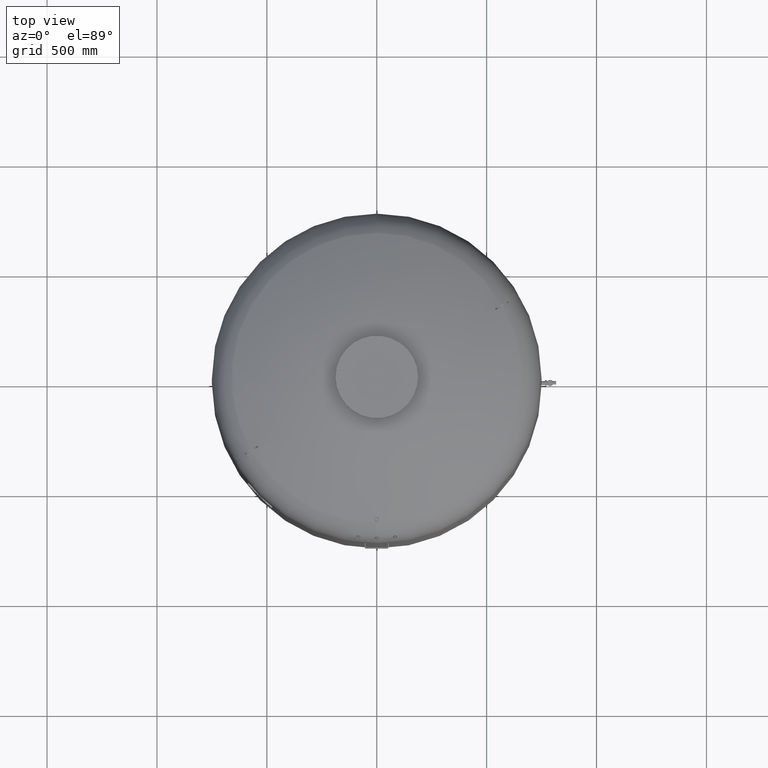
[diagram: clean part render]
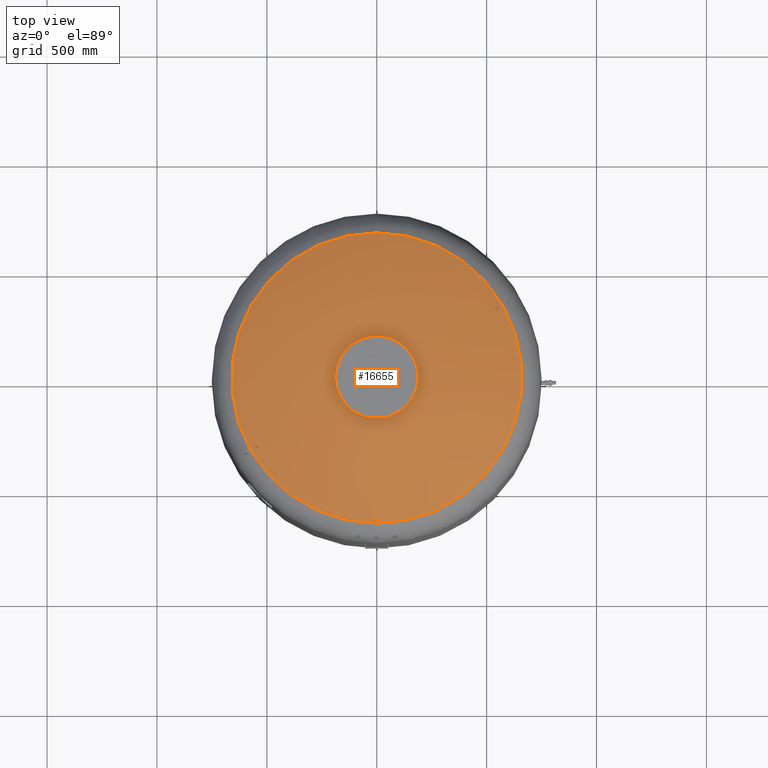
[diagram: same view with one face highlighted and labeled with its STEP entity id]
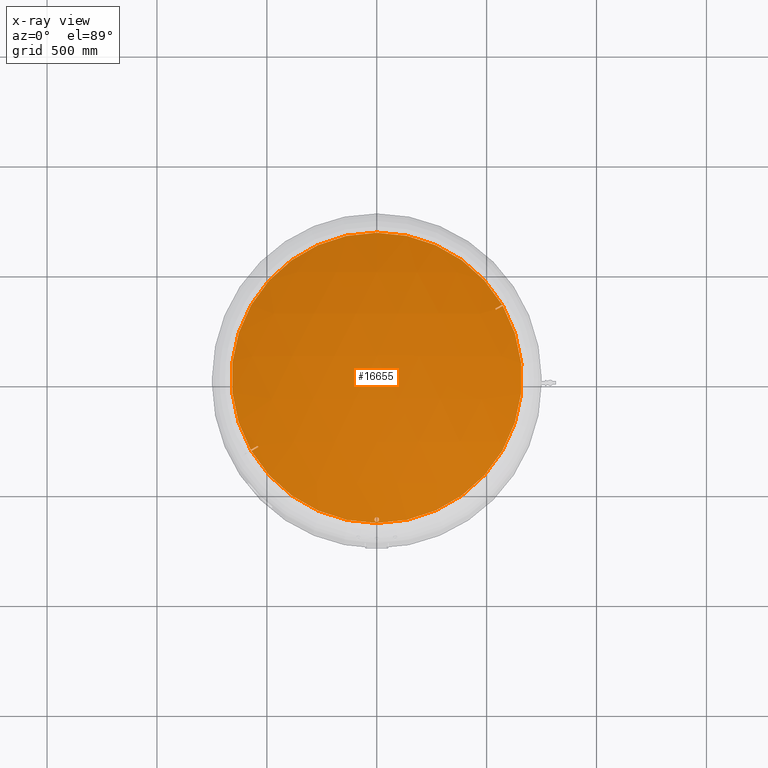
[diagram: x-ray of the same camera — body ghosted, the highlighted face saturated]
A machine part, top view. The second image highlights one B-rep face of the part: STEP entity #16655.
The next image is the same camera in x-ray: the body ghosted, the highlighted face saturated — about 0% of this face is hidden behind the body in this view.
In plain terms, the highlighted spherical surface has radius 1509 mm.
Its self-contained STEP definition (entity closure, byte-faithful):
#15873=CARTESIAN_POINT('',(-3.908790E-014,-655.650000000000200,2275.118860696149600));
#15874=VERTEX_POINT('',#15873);
#15890=CARTESIAN_POINT('',(-3.643333E-014,-634.350000000000250,2285.189934778955400));
#15891=VERTEX_POINT('',#15890);
#15898=CARTESIAN_POINT('',(-3.643333E-014,-634.350000000000250,2285.189934778955400));
#15899=CARTESIAN_POINT('',(-0.665356121600575,-634.350000000000250,2285.189934778955400));
#15900=CARTESIAN_POINT('',(-1.350949437001933,-634.413404190588380,2285.160067323583900));
#15901=CARTESIAN_POINT('',(-2.709163715388102,-634.677136677483300,2285.035819489551600));
#15902=CARTESIAN_POINT('',(-3.381800145527381,-634.877399673759780,2284.941469592940800));
#15903=CARTESIAN_POINT('',(-4.666205770247565,-635.401555709393960,2284.694482302683800));
#15904=CARTESIAN_POINT('',(-5.279175018932286,-635.725897994843310,2284.541632396409100));
#15905=CARTESIAN_POINT('',(-6.408446699131011,-636.467094997367890,2284.192258225785700));
#15906=CARTESIAN_POINT('',(-6.924750618118385,-636.883947430330180,2283.995733923613400));
#15907=CARTESIAN_POINT('',(-7.890225855511284,-637.812066143510150,2283.558066601965000));
#15908=CARTESIAN_POINT('',(-8.361484811050577,-638.364076526992330,2283.297699280517000));
#15909=CARTESIAN_POINT('',(-9.184909130526258,-639.560574217313960,2282.733154802825500));
#15910=CARTESIAN_POINT('',(-9.537165322407889,-640.205009979753980,2282.429000886638700));
#15911=CARTESIAN_POINT('',(-10.099596713855821,-641.543470358319950,2281.797056877939700));
#15912=CARTESIAN_POINT('',(-10.310158197774166,-642.238371078161440,2281.468852435417800));
#15913=CARTESIAN_POINT('',(-10.585389715432889,-643.630518005042970,2280.811092215924000));
#15914=CARTESIAN_POINT('',(-10.650000000000041,-644.327773783445990,2280.481531696811500));
#15915=CARTESIAN_POINT('',(-10.650000000000041,-645.672582847176270,2279.845682896962900));
#15916=CARTESIAN_POINT('',(-10.585321999158978,-646.370108996278650,2279.515766474685300));
#15917=CARTESIAN_POINT('',(-10.309904511360994,-647.762627273321750,2278.856887882093800));
#15918=CARTESIAN_POINT('',(-10.099226215268921,-648.457629366783070,2278.527921196685800));
#15919=CARTESIAN_POINT('',(-9.536575262430000,-649.796175836176870,2277.894126243168100));
#15920=CARTESIAN_POINT('',(-9.184218306884119,-650.440594312455000,2277.588884786357100));
#15921=CARTESIAN_POINT('',(-8.360621428439867,-651.637013011092450,2277.022009760502000));
#15922=CARTESIAN_POINT('',(-7.889290439644364,-652.188962456306400,2276.760401335867800));
#15923=CARTESIAN_POINT('',(-6.923874650766163,-653.116778685511690,2276.320541682071500));
#15924=CARTESIAN_POINT('',(-6.407722563082293,-653.533432843510810,2276.122965029964700));
#15925=CARTESIAN_POINT('',(-5.278739801402308,-654.274335051526010,2275.771567636845200));
#15926=CARTESIAN_POINT('',(-4.665906970622991,-654.598580857008300,2275.617749092760700));
#15927=CARTESIAN_POINT('',(-3.381714256279930,-655.122620744017920,2275.369122863290600));
#15928=CARTESIAN_POINT('',(-2.709152380359616,-655.322864024945490,2275.274102903182200));
#15929=CARTESIAN_POINT('',(-1.351005238531963,-655.586586472611200,2275.148956099280000));
#15930=CARTESIAN_POINT('',(-0.665404330812124,-655.650000000000200,2275.118860696149600));
#15931=CARTESIAN_POINT('',(-3.908790E-014,-655.650000000000200,2275.118860696149600));
#15932=B_SPLINE_CURVE_WITH_KNOTS('',3,(#15898,#15899,#15900,#15901,#15902,#15903,#15904,#15905,#15906,#15907,#15908,#15909,#15910,#15911,#15912,#15913,#15914,#15915,#15916,#15917,#15918,#15919,#15920,#15921,#15922,#15923,#15924,#15925,#15926,#15927,#15928,#15929,#15930,#15931),.UNSPECIFIED.,.F.,.U.,(4,2,2,2,2,2,2,2,2,2,2,2,2,2,2,2,4),(33.819766214062426,35.815834578864042,37.811902943665665,39.807971308467287,41.804039673268903,44.034778043807279,46.265516414345662,48.496254784884044,50.726993155422420,52.958914981161783,55.190836806901146,57.422758632640509,59.654680458379865,61.650893450816113,63.647106443252355,65.643319435688596,67.639532428124852),.UNSPECIFIED.);
#15933=EDGE_CURVE('',#15891,#15874,#15932,.T.);
#16154=CARTESIAN_POINT('',(1.087271E-013,660.606666666666800,2272.716562866229200));
#16155=VERTEX_POINT('',#16154);
#16163=CARTESIAN_POINT('',(570.596255916202270,332.898003566943030,2272.716562866229200));
#16164=VERTEX_POINT('',#16163);
#16165=CARTESIAN_POINT('',(7.530601E-015,-2.797401E-014,2272.716562866229200));
#16166=DIRECTION('',(0.0,0.0,-1.0));
#16167=DIRECTION('',(1.0,0.0,0.0));
#16168=AXIS2_PLACEMENT_3D('',#16165,#16166,#16167);
#16169=CIRCLE('',#16168,660.606666666666800);
#16170=EDGE_CURVE('',#16155,#16164,#16169,.T.);
#16199=CARTESIAN_POINT('',(573.596255916202270,327.701851144236400,2272.716562866229200));
#16200=VERTEX_POINT('',#16199);
#16214=CARTESIAN_POINT('',(2.782883E-014,-660.606666666666800,2272.716562866229200));
#16215=VERTEX_POINT('',#16214);
#16216=CARTESIAN_POINT('',(7.530601E-015,-2.797401E-014,2272.716562866229200));
#16217=DIRECTION('',(0.0,0.0,-1.0));
#16218=DIRECTION('',(1.0,0.0,0.0));
#16219=AXIS2_PLACEMENT_3D('',#16216,#16217,#16218);
#16220=CIRCLE('',#16219,660.606666666666800);
#16221=EDGE_CURVE('',#16200,#16215,#16220,.T.);
#16336=CARTESIAN_POINT('',(-570.596255916196580,-332.898003566952920,2272.716562866229700));
#16337=VERTEX_POINT('',#16336);
#16338=CARTESIAN_POINT('',(7.530601E-015,-2.797401E-014,2272.716562866229200));
#16339=DIRECTION('',(0.0,0.0,-1.0));
#16340=DIRECTION('',(1.0,0.0,0.0));
#16341=AXIS2_PLACEMENT_3D('',#16338,#16339,#16340);
#16342=CIRCLE('',#16341,660.606666666666800);
#16343=EDGE_CURVE('',#16215,#16337,#16342,.T.);
#16372=CARTESIAN_POINT('',(-573.596255916196580,-327.701851144246290,2272.716562866229700));
#16373=VERTEX_POINT('',#16372);
#16387=CARTESIAN_POINT('',(7.530601E-015,-2.797401E-014,2272.716562866229200));
#16388=DIRECTION('',(0.0,0.0,-1.0));
#16389=DIRECTION('',(1.0,0.0,0.0));
#16390=AXIS2_PLACEMENT_3D('',#16387,#16388,#16389);
#16391=CIRCLE('',#16390,660.606666666666800);
#16392=EDGE_CURVE('',#16373,#16155,#16391,.T.);
#16554=CARTESIAN_POINT('',(1.607048E-013,-2.771988E-013,916.0));
#16555=DIRECTION('',(0.0,-1.0,0.0));
#16556=DIRECTION('',(-1.0,0.0,0.0));
#16557=AXIS2_PLACEMENT_3D('',#16554,#16555,#16556);
#16558=SPHERICAL_SURFACE('',#16557,1509.0);
#16559=CARTESIAN_POINT('',(-539.004547741172360,-314.658522347942950,2289.879584180558100));
#16560=VERTEX_POINT('',#16559);
#16561=CARTESIAN_POINT('',(1.500000000005994,-2.598076211363742,916.0));
#16562=DIRECTION('',(0.499999999999994,-0.866025403784442,0.0));
#16563=DIRECTION('',(0.0,0.0,1.0));
#16564=AXIS2_PLACEMENT_3D('',#16561,#16562,#16563);
#16565=CIRCLE('',#16564,1508.997017889697400);
#16566=EDGE_CURVE('',#16560,#16337,#16565,.T.);
#16567=ORIENTED_EDGE('',*,*,#16566,.T.);
#16568=ORIENTED_EDGE('',*,*,#16343,.F.);
#16569=ORIENTED_EDGE('',*,*,#16221,.F.);
#16570=CARTESIAN_POINT('',(542.004547741178380,309.462369925225970,2289.879584180558100));
#16571=VERTEX_POINT('',#16570);
#16572=CARTESIAN_POINT('',(1.500000000006090,-2.598076211363818,916.0));
#16573=DIRECTION('',(0.500000000000006,-0.866025403784435,0.0));
#16574=DIRECTION('',(0.0,0.0,1.0));
#16575=AXIS2_PLACEMENT_3D('',#16572,#16573,#16574);
#16576=CIRCLE('',#16575,1508.997017889697400);
#16577=EDGE_CURVE('',#16200,#16571,#16576,.T.);
#16578=ORIENTED_EDGE('',*,*,#16577,.T.);
#16579=CARTESIAN_POINT('',(539.004547741178380,314.658522347932720,2289.879584180558100));
#16580=VERTEX_POINT('',#16579);
#16581=CARTESIAN_POINT('',(195.850324208315390,113.074237402547780,853.348481320245360));
#16582=DIRECTION('',(-0.834590199910595,-0.481850876581413,0.266981143436977));
#16583=DIRECTION('',(0.0,0.484652475916126,0.874706795211040));
#16584=AXIS2_PLACEMENT_3D('',#16581,#16582,#16583);
#16585=CIRCLE('',#16584,1490.641692208577100);
#16586=EDGE_CURVE('',#16571,#16580,#16585,.T.);
#16587=ORIENTED_EDGE('',*,*,#16586,.T.);
#16588=CARTESIAN_POINT('',(-1.499999999993948,2.598076211342792,916.0));
#16589=DIRECTION('',(-0.500000000000006,0.866025403784435,0.0));
#16590=DIRECTION('',(0.0,0.0,-1.0));
#16591=AXIS2_PLACEMENT_3D('',#16588,#16589,#16590);
#16592=CIRCLE('',#16591,1508.997017889697400);
#16593=EDGE_CURVE('',#16580,#16164,#16592,.T.);
#16594=ORIENTED_EDGE('',*,*,#16593,.T.);
#16595=ORIENTED_EDGE('',*,*,#16170,.F.);
#16596=ORIENTED_EDGE('',*,*,#16392,.F.);
#16597=CARTESIAN_POINT('',(-542.004547741172470,-309.462369925236320,2289.879584180558100));
#16598=VERTEX_POINT('',#16597);
#16599=CARTESIAN_POINT('',(-1.499999999993967,2.598076211342912,916.0));
#16600=DIRECTION('',(-0.499999999999994,0.866025403784442,0.0));
#16601=DIRECTION('',(0.0,0.0,-1.0));
#16602=AXIS2_PLACEMENT_3D('',#16599,#16600,#16601);
#16603=CIRCLE('',#16602,1508.997017889697400);
#16604=EDGE_CURVE('',#16373,#16598,#16603,.T.);
#16605=ORIENTED_EDGE('',*,*,#16604,.T.);
#16606=CARTESIAN_POINT('',(-195.850324208316520,-113.074237402545550,853.348481320245580));
#16607=DIRECTION('',(0.834590199910602,0.481850876581402,0.266981143436977));
#16608=DIRECTION('',(0.0,0.484652475916135,-0.874706795211036));
#16609=AXIS2_PLACEMENT_3D('',#16606,#16607,#16608);
#16610=CIRCLE('',#16609,1490.641692208577100);
#16611=EDGE_CURVE('',#16598,#16560,#16610,.T.);
#16612=ORIENTED_EDGE('',*,*,#16611,.T.);
#16613=EDGE_LOOP('',(#16567,#16568,#16569,#16578,#16587,#16594,#16595,#16596,#16605,#16612));
#16614=FACE_OUTER_BOUND('',#16613,.T.);
#16615=CARTESIAN_POINT('',(-3.908790E-014,-655.650000000000200,2275.118860696149600));
#16616=CARTESIAN_POINT('',(0.665404330812043,-655.650000000000200,2275.118860696149600));
#16617=CARTESIAN_POINT('',(1.351005238531879,-655.586586472611200,2275.148956099280000));
#16618=CARTESIAN_POINT('',(2.709152380359531,-655.322864024945490,2275.274102903182200));
#16619=CARTESIAN_POINT('',(3.381714256279847,-655.122620744017920,2275.369122863290600));
#16620=CARTESIAN_POINT('',(4.665906970622912,-654.598580857008300,2275.617749092760700));
#16621=CARTESIAN_POINT('',(5.278739801402231,-654.274335051526010,2275.771567636845200));
#16622=CARTESIAN_POINT('',(6.407722563082215,-653.533432843510810,2276.122965029964700));
#16623=CARTESIAN_POINT('',(6.923874650766086,-653.116778685511690,2276.320541682071500));
#16624=CARTESIAN_POINT('',(7.889290439644289,-652.188962456306400,2276.760401335867800));
#16625=CARTESIAN_POINT('',(8.360621428439895,-651.637013011092340,2277.022009760502000));
#16626=CARTESIAN_POINT('',(9.184218306884104,-650.440594312454890,2277.588884786357100));
#16627=CARTESIAN_POINT('',(9.536575262430048,-649.796175836176760,2277.894126243168100));
#16628=CARTESIAN_POINT('',(10.099226215268947,-648.457629366782840,2278.527921196685800));
#16629=CARTESIAN_POINT('',(10.309904511360925,-647.762627273321640,2278.856887882094300));
#16630=CARTESIAN_POINT('',(10.585321999158889,-646.370108996278760,2279.515766474685700));
#16631=CARTESIAN_POINT('',(10.649999999999967,-645.672582847176270,2279.845682896962900));
#16632=CARTESIAN_POINT('',(10.649999999999967,-644.327773783445990,2280.481531696811500));
#16633=CARTESIAN_POINT('',(10.585389715432814,-643.630518005042970,2280.811092215924000));
#16634=CARTESIAN_POINT('',(10.310158197774092,-642.238371078161440,2281.468852435417800));
#16635=CARTESIAN_POINT('',(10.099596713855746,-641.543470358319950,2281.797056877939700));
#16636=CARTESIAN_POINT('',(9.537165322407816,-640.205009979753980,2282.429000886638700));
#16637=CARTESIAN_POINT('',(9.184909130526183,-639.560574217313960,2282.733154802825500));
#16638=CARTESIAN_POINT('',(8.361484811050502,-638.364076526992330,2283.297699280517000));
#16639=CARTESIAN_POINT('',(7.890225855511214,-637.812066143510150,2283.558066601965000));
#16640=CARTESIAN_POINT('',(6.924750618118313,-636.883947430330180,2283.995733923613400));
#16641=CARTESIAN_POINT('',(6.408446699130936,-636.467094997367890,2284.192258225785700));
#16642=CARTESIAN_POINT('',(5.279175018932212,-635.725897994843310,2284.541632396409100));
#16643=CARTESIAN_POINT('',(4.666205770247492,-635.401555709393960,2284.694482302683800));
#16644=CARTESIAN_POINT('',(3.381800145527312,-634.877399673759780,2284.941469592940800));
#16645=CARTESIAN_POINT('',(2.709163715388034,-634.677136677483300,2285.035819489551600));
#16646=CARTESIAN_POINT('',(1.350949437001865,-634.413404190588380,2285.160067323583900));
#16647=CARTESIAN_POINT('',(0.665356121600503,-634.350000000000250,2285.189934778955400));
#16648=CARTESIAN_POINT('',(-3.643333E-014,-634.350000000000250,2285.189934778955400));
#16649=B_SPLINE_CURVE_WITH_KNOTS('',3,(#16615,#16616,#16617,#16618,#16619,#16620,#16621,#16622,#16623,#16624,#16625,#16626,#16627,#16628,#16629,#16630,#16631,#16632,#16633,#16634,#16635,#16636,#16637,#16638,#16639,#16640,#16641,#16642,#16643,#16644,#16645,#16646,#16647,#16648),.UNSPECIFIED.,.F.,.U.,(4,2,2,2,2,2,2,2,2,2,2,2,2,2,2,2,4),(0.0,1.996212992436247,3.992425984872494,5.988638977308741,7.984851969744987,10.216773795484348,12.448695621223710,14.680617446963071,16.912539272702432,19.143277643240811,21.374016013779190,23.604754384317570,25.835492754855949,27.831561119657568,29.827629484459187,31.823697849260807,33.819766214062426),.UNSPECIFIED.);
#16650=EDGE_CURVE('',#15874,#15891,#16649,.T.);
#16651=ORIENTED_EDGE('',*,*,#16650,.F.);
#16652=ORIENTED_EDGE('',*,*,#15933,.F.);
#16653=EDGE_LOOP('',(#16651,#16652));
#16654=FACE_BOUND('',#16653,.T.);
#16655=ADVANCED_FACE('',(#16614,#16654),#16558,.T.);